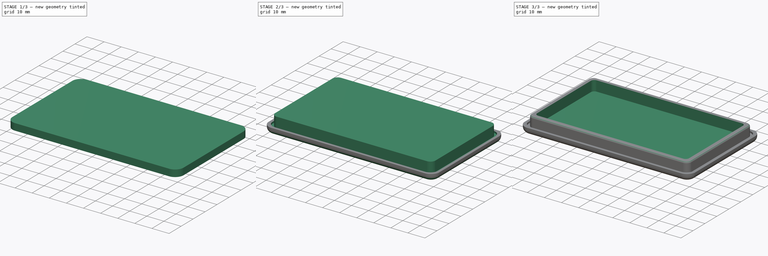
[diagram: build sequence overview — one tinted view per stage of 3, left to right]
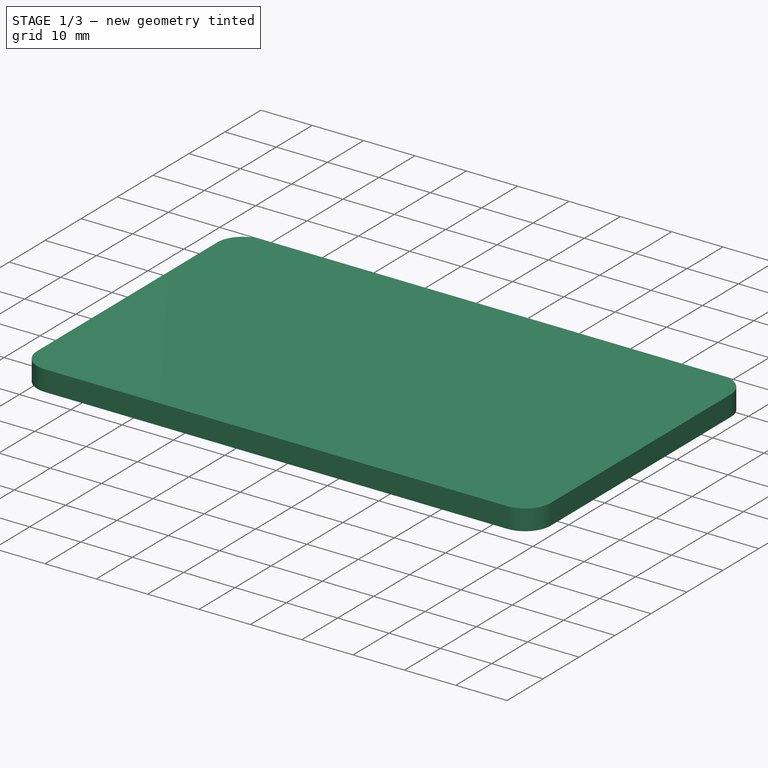
[diagram: stage 1 of 3 — iso view after this stage's code; geometry added in this stage tinted green]
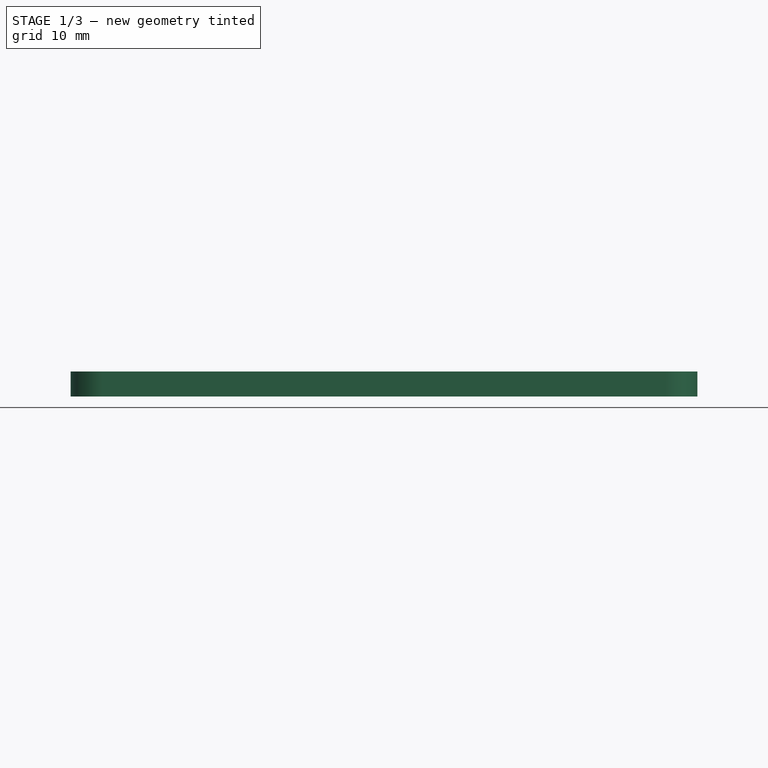
[diagram: stage 1 of 3 — front view after this stage's code; geometry added in this stage tinted green]
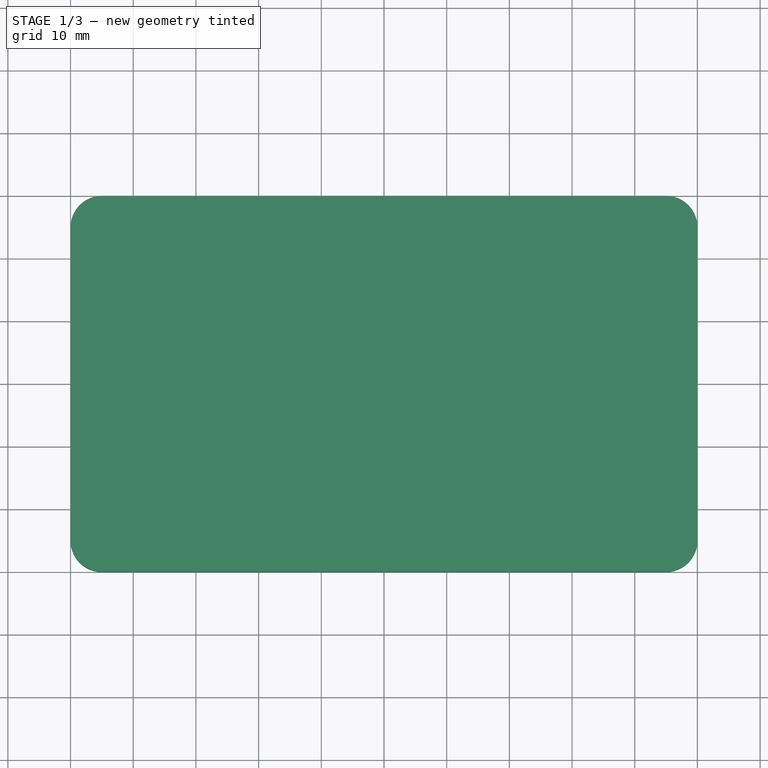
[diagram: stage 1 of 3 — top view after this stage's code; geometry added in this stage tinted green]
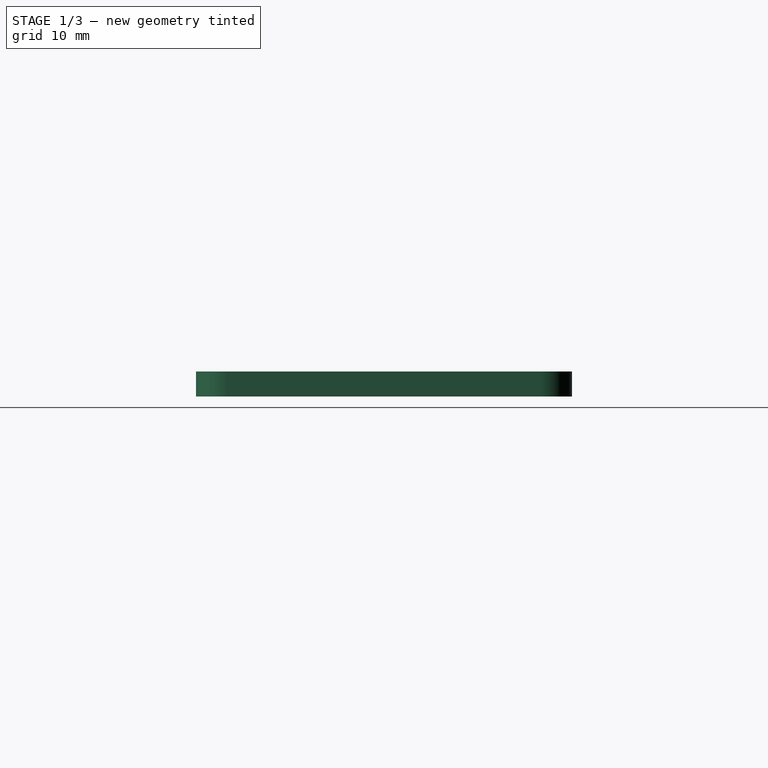
[diagram: stage 1 of 3 — right view after this stage's code; geometry added in this stage tinted green]
FCSTD DOCUMENT  (FreeCAD 0.19R24291 (Git))
Label: funnybox-closing-v3.2
License: All rights reserved
LicenseURL: http://en.wikipedia.org/wiki/All_rights_reserved
objects: Sketcher::SketchObject×4, PartDesign::Fillet×3, PartDesign::Pad×2, PartDesign::Pocket×2, PartDesign::Body×1
note: 19 computed .brp shape members not serialized (recipe doc carries the construction recipe); baked Part::Feature solids carry a one-line shape summary decoded from their .brp

FEATURE [Sketcher::SketchObject] Sketch
  FullyConstrained = true
  MapMode = 5
  Support = -> [XY_Plane]
  sketch-geometry (4):
    g0: LineSegment StartX=0 StartY=0 StartZ=0 EndX=100 EndY=0 EndZ=0
    g1: LineSegment StartX=100 StartY=0 StartZ=0 EndX=100 EndY=60 EndZ=0
    g2: LineSegment StartX=100 StartY=60 StartZ=0 EndX=0 EndY=60 EndZ=0
    g3: LineSegment StartX=0 StartY=60 StartZ=0 EndX=0 EndY=0 EndZ=0
  constraints (12):
    c: Coincident(g0,g1)
    c: Coincident(g1,g2)
    c: Coincident(g2,g3)
    c: Coincident(g3,g0)
    c: Horizontal(g0)
    c: Horizontal(g2)
    c: Vertical(g1)
    c: Vertical(g3)
    c: DistanceX(g0) = 0
    c: DistanceY(g0) = 0
    c: DistanceX(g2,g2) = 100
    c: DistanceY(g3,g3) = 60
FEATURE [PartDesign::Pad] Pad  label="Main"
  Direction = (1,1,1)
  Length = 4
  Length2 = 100
  Profile = -> Sketch
  Type = 0
FEATURE [Sketcher::SketchObject] Sketch001
  FullyConstrained = true
  MapMode = 5
  Placement = pos=(0,0,4) rot=(0,0,1;0rad)
  Support = -> [Pad]
  sketch-geometry (12):
    g0: LineSegment StartX=6.05 StartY=3.05 StartZ=0 EndX=93.95 EndY=3.05 EndZ=0
    g1: LineSegment StartX=96.95 StartY=6.05 StartZ=0 EndX=96.95 EndY=53.95 EndZ=0
    g2: LineSegment StartX=93.95 StartY=56.95 StartZ=0 EndX=6.05 EndY=56.95 EndZ=0
    g3: LineSegment StartX=3.05 StartY=53.95 StartZ=0 EndX=3.05 EndY=6.05 EndZ=0
    g4: ArcOfCircle CenterX=6.05 CenterY=53.95 CenterZ=0 NormalX=0 NormalY=0 NormalZ=1 AngleXU=0 Radius=3 StartAngle=1.5708 EndAngle=3.14159
    g5: GeomPoint X=3.05 Y=56.95 Z=0
    g6: ArcOfCircle CenterX=6.05 CenterY=6.05 CenterZ=0 NormalX=0 NormalY=0 NormalZ=1 AngleXU=0 Radius=3 StartAngle=3.14159 EndAngle=4.71239
    g7: GeomPoint X=3.05 Y=3.05 Z=0
    g8: ArcOfCircle CenterX=93.95 CenterY=6.05 CenterZ=0 NormalX=0 NormalY=0 NormalZ=1 AngleXU=0 Radius=3 StartAngle=4.71239 EndAngle=6.28319
    g9: GeomPoint X=96.95 Y=3.05 Z=0
    g10: ArcOfCircle CenterX=93.95 CenterY=53.95 CenterZ=0 NormalX=0 NormalY=0 NormalZ=1 AngleXU=0 Radius=3 StartAngle=7e-16 EndAngle=1.5708
    g11: GeomPoint X=96.95 Y=56.95 Z=0
  constraints (28):
    c: Horizontal(g0)
    c: Horizontal(g2)
    c: Vertical(g1)
    c: Vertical(g3)
    c: DistanceX(g7) = 3.05
    c: DistanceY(g7) = 3.05
    c: DistanceX(g7,g9) = 93.9
    c: DistanceY(g7,g5) = 53.9
    c: PointOnObject(g5,g2)
    c: PointOnObject(g5,g3)
    c: Tangent(g2,g4) = -1.5708
    c: Tangent(g3,g4) = -1.5708
    c: PointOnObject(g7,g0)
    c: PointOnObject(g7,g3)
    c: Tangent(g0,g6) = -1.5708
    c: Tangent(g3,g6) = -1.5708
    c: PointOnObject(g9,g0)
    c: PointOnObject(g9,g1)
    c: Tangent(g0,g8) = -1.5708
    c: Tangent(g1,g8) = -1.5708
    c: PointOnObject(g11,g1)
    c: PointOnObject(g11,g2)
    c: Tangent(g1,g10) = -1.5708
    c: Tangent(g2,g10) = -1.5708
    c: Radius(g4) = 3
    c: Radius(g6) = 3
    c: Radius(g10) = 3
    c: Radius(g8) = 3
FEATURE [Sketcher::SketchObject] Sketch008
  FullyConstrained = true
  MapMode = 5
  Placement = pos=(0,0,4) rot=(0,0,1;0rad)
  Support = -> [Pad]
  sketch-geometry (24):
    g0: LineSegment StartX=6.05 StartY=1.55 StartZ=0 EndX=93.95 EndY=1.55 EndZ=0
    g1: LineSegment StartX=98.45 StartY=6.05 StartZ=0 EndX=98.45 EndY=53.95 EndZ=0
    g2: LineSegment StartX=93.95 StartY=58.45 StartZ=0 EndX=6.05 EndY=58.45 EndZ=0
    g3: LineSegment StartX=1.55 StartY=53.95 StartZ=0 EndX=1.55 EndY=6.05 EndZ=0
    g4: LineSegment StartX=6.05 StartY=3.05 StartZ=0 EndX=93.95 EndY=3.05 EndZ=0
    g5: LineSegment StartX=96.95 StartY=6.05 StartZ=0 EndX=96.95 EndY=53.95 EndZ=0
    g6: LineSegment StartX=93.95 StartY=56.95 StartZ=0 EndX=6.05 EndY=56.95 EndZ=0
    g7: LineSegment StartX=3.05 StartY=53.95 StartZ=0 EndX=3.05 EndY=6.05 EndZ=0
    g8: ArcOfCircle CenterX=6.05 CenterY=53.95 CenterZ=0 NormalX=0 NormalY=0 NormalZ=1 AngleXU=0 Radius=3 StartAngle=1.5708 EndAngle=3.14159
    g9: GeomPoint X=3.05 Y=56.95 Z=0
    g10: ArcOfCircle CenterX=6.05 CenterY=53.95 CenterZ=0 NormalX=0 NormalY=0 NormalZ=1 AngleXU=0 Radius=4.5 StartAngle=1.5708 EndAngle=3.14159
    g11: GeomPoint X=1.55 Y=58.45 Z=0
    g12: ArcOfCircle CenterX=93.95 CenterY=53.95 CenterZ=0 NormalX=0 NormalY=0 NormalZ=1 AngleXU=0 Radius=3 StartAngle=8e-16 EndAngle=1.5708
    g13: GeomPoint X=96.95 Y=56.95 Z=0
    g14: ArcOfCircle CenterX=93.95 CenterY=53.95 CenterZ=0 NormalX=0 NormalY=0 NormalZ=1 AngleXU=0 Radius=4.5 StartAngle=2e-16 EndAngle=1.5708
    g15: GeomPoint X=98.45 Y=58.45 Z=0
    g16: ArcOfCircle CenterX=6.05 CenterY=6.05 CenterZ=0 NormalX=0 NormalY=0 NormalZ=1 AngleXU=0 Radius=3 StartAngle=3.14159 EndAngle=4.71239
    g17: GeomPoint X=3.05 Y=3.05 Z=0
    g18: ArcOfCircle CenterX=6.05 CenterY=6.05 CenterZ=0 NormalX=0 NormalY=0 NormalZ=1 AngleXU=0 Radius=4.5 StartAngle=3.14159 EndAngle=4.71239
    g19: GeomPoint X=1.55 Y=1.55 Z=0
    g20: ArcOfCircle CenterX=93.95 CenterY=6.05 CenterZ=0 NormalX=0 NormalY=0 NormalZ=1 AngleXU=0 Radius=3 StartAngle=4.71239 EndAngle=6.28319
    g21: GeomPoint X=96.95 Y=3.05 Z=0
    g22: ArcOfCircle CenterX=93.95 CenterY=6.05 CenterZ=0 NormalX=0 NormalY=0 NormalZ=1 AngleXU=0 Radius=4.5 StartAngle=4.71239 EndAngle=6.28319
    g23: GeomPoint X=98.45 Y=1.55 Z=0
  constraints (56):
    c: Horizontal(g0)
    c: Horizontal(g2)
    c: Vertical(g1)
    c: Vertical(g3)
    c: DistanceX(g19) = 1.55
    c: DistanceY(g19) = 1.55
    c: DistanceX(g19,g23) = 96.9
    c: DistanceY(g19,g11) = 56.9
    c: Horizontal(g4)
    c: Horizontal(g6)
    c: Vertical(g5)
    c: Vertical(g7)
    c: DistanceX(g17) = 3.05
    c: DistanceY(g17) = 3.05
    c: DistanceX(g17,g21) = 93.9
    c: DistanceY(g17,g9) = 53.9
    c: PointOnObject(g9,g6)
    c: PointOnObject(g9,g7)
    c: Tangent(g6,g8) = -1.5708
    c: Tangent(g7,g8) = -1.5708
    c: PointOnObject(g11,g2)
    c: PointOnObject(g11,g3)
    c: Tangent(g2,g10) = -1.5708
    c: Tangent(g3,g10) = -1.5708
    c: PointOnObject(g13,g5)
    c: PointOnObject(g13,g6)
    c: Tangent(g5,g12) = -1.5708
    c: Tangent(g6,g12) = -1.5708
    c: PointOnObject(g15,g1)
    c: PointOnObject(g15,g2)
    c: Tangent(g1,g14) = -1.5708
    c: Tangent(g2,g14) = -1.5708
    c: PointOnObject(g17,g4)
    c: PointOnObject(g17,g7)
    c: Tangent(g4,g16) = -1.5708
    c: Tangent(g7,g16) = -1.5708
    c: PointOnObject(g19,g0)
    c: PointOnObject(g19,g3)
    c: Tangent(g0,g18) = -1.5708
    c: Tangent(g3,g18) = -1.5708
    c: PointOnObject(g21,g4)
    c: PointOnObject(g21,g5)
    c: Tangent(g4,g20) = -1.5708
    c: Tangent(g5,g20) = -1.5708
    c: PointOnObject(g23,g0)
    c: PointOnObject(g23,g1)
    c: Tangent(g0,g22) = -1.5708
    c: Tangent(g1,g22) = -1.5708
    c: Radius(g10) = 4.5
    c: Radius(g8) = 3
    c: Radius(g18) = 4.5
    c: Radius(g16) = 3
    c: Radius(g12) = 3
    c: Radius(g14) = 4.5
    c: Radius(g20) = 3
    c: Radius(g22) = 4.5
FEATURE [PartDesign::Fillet] Fillet
  Base = -> Pad [Edge2,Edge1,Edge5,Edge8]
  BaseFeature = -> Pad
  Radius = 5
  SupportTransform = false
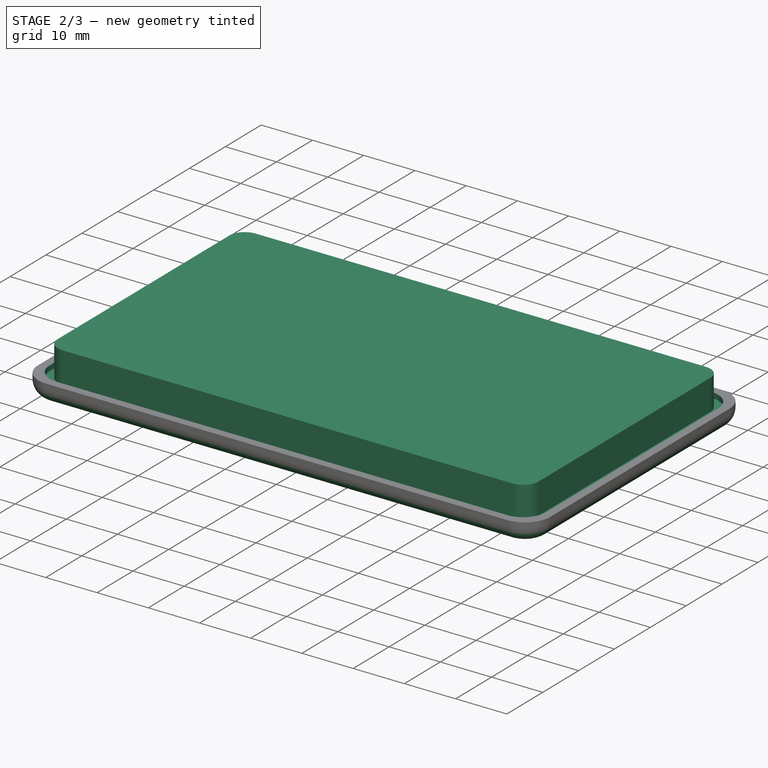
[diagram: stage 2 of 3 — iso view after this stage's code; geometry added in this stage tinted green]
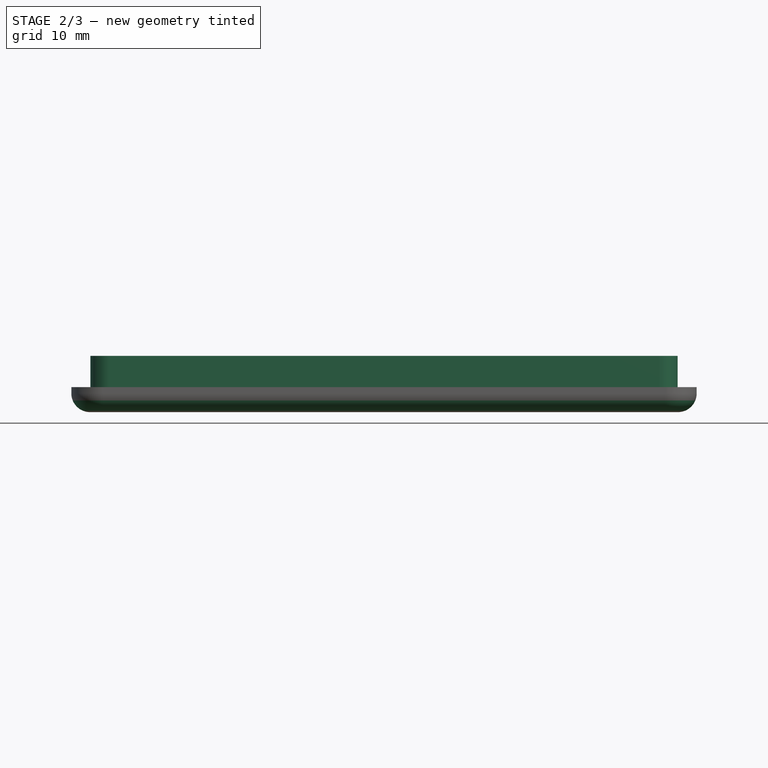
[diagram: stage 2 of 3 — front view after this stage's code; geometry added in this stage tinted green]
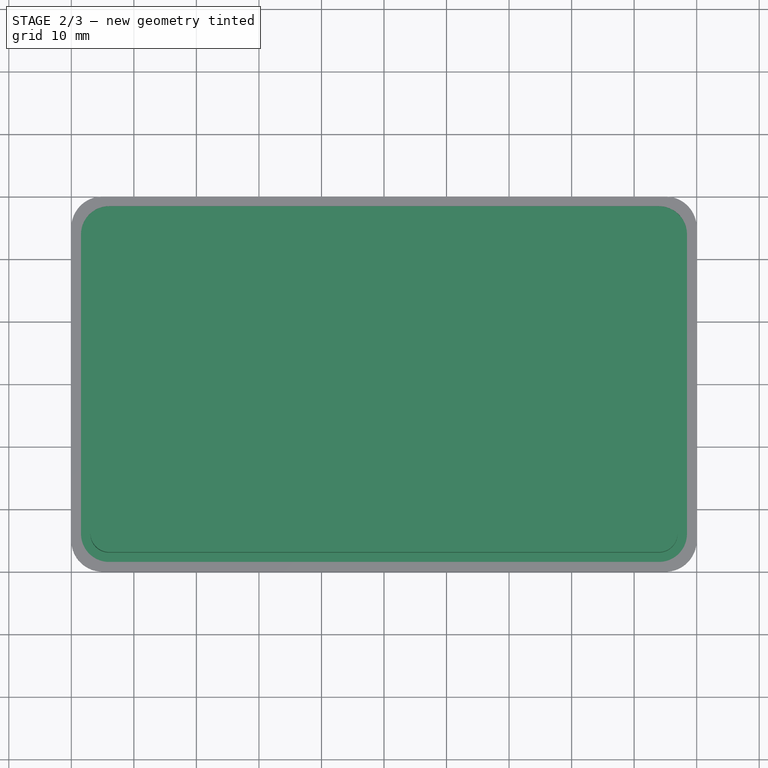
[diagram: stage 2 of 3 — top view after this stage's code; geometry added in this stage tinted green]
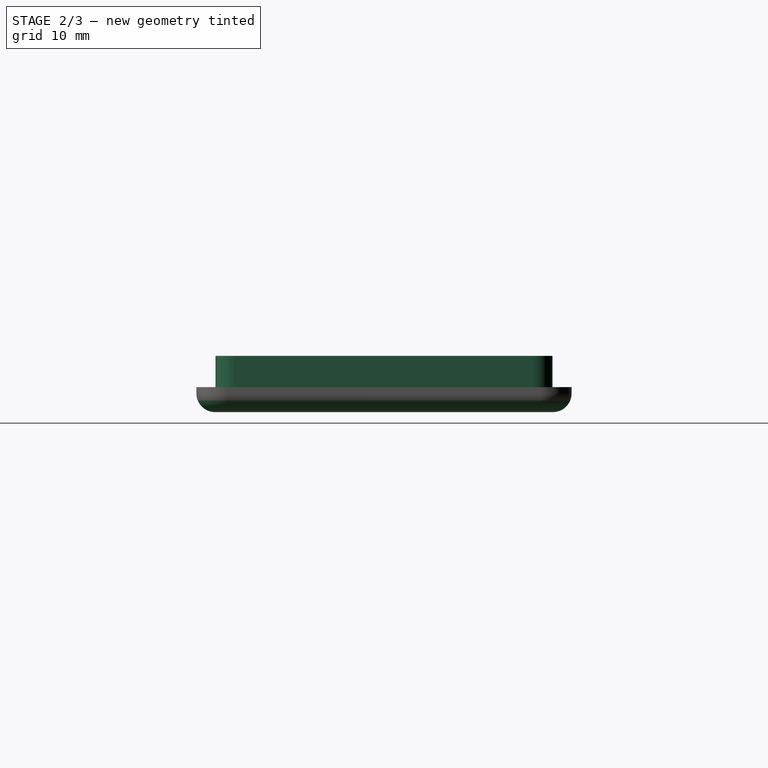
[diagram: stage 2 of 3 — right view after this stage's code; geometry added in this stage tinted green]
FEATURE [PartDesign::Fillet] Fillet001
  Base = -> Fillet [Edge11]
  BaseFeature = -> Fillet
  Radius = 3
  SupportTransform = false
FEATURE [PartDesign::Pocket] Pocket001  label="rubber hole"
  BaseFeature = -> Fillet001
  Length = 1
  Length2 = 100
  Profile = -> Sketch008
  Type = 0
FEATURE [PartDesign::Pad] Pad001  label="grabbing wall"
  BaseFeature = -> Pocket001
  Direction = (1,1,1)
  Length = 5
  Length2 = 100
  Profile = -> Sketch001
  Type = 0
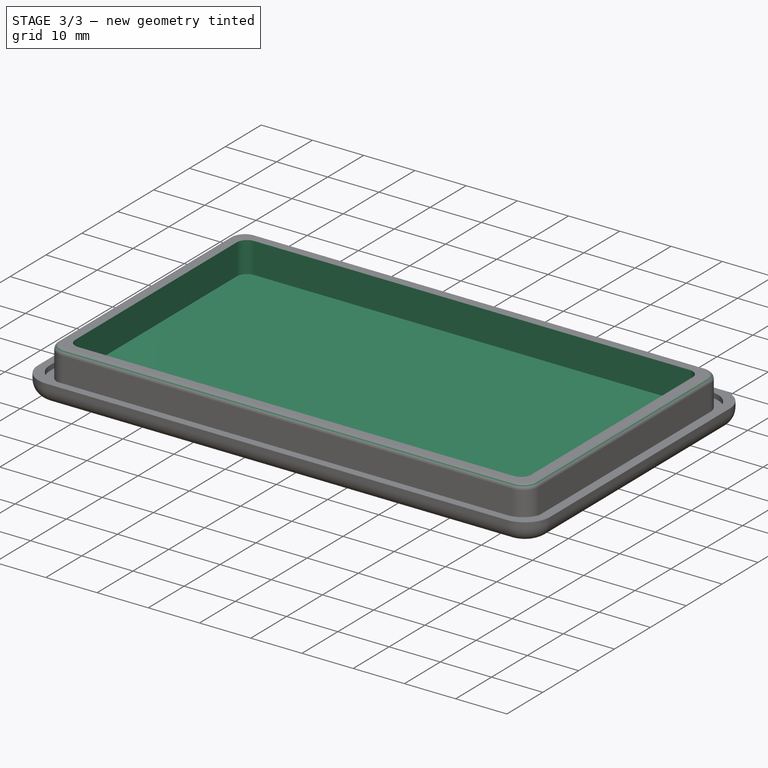
[diagram: stage 3 of 3 — iso view after this stage's code; geometry added in this stage tinted green]
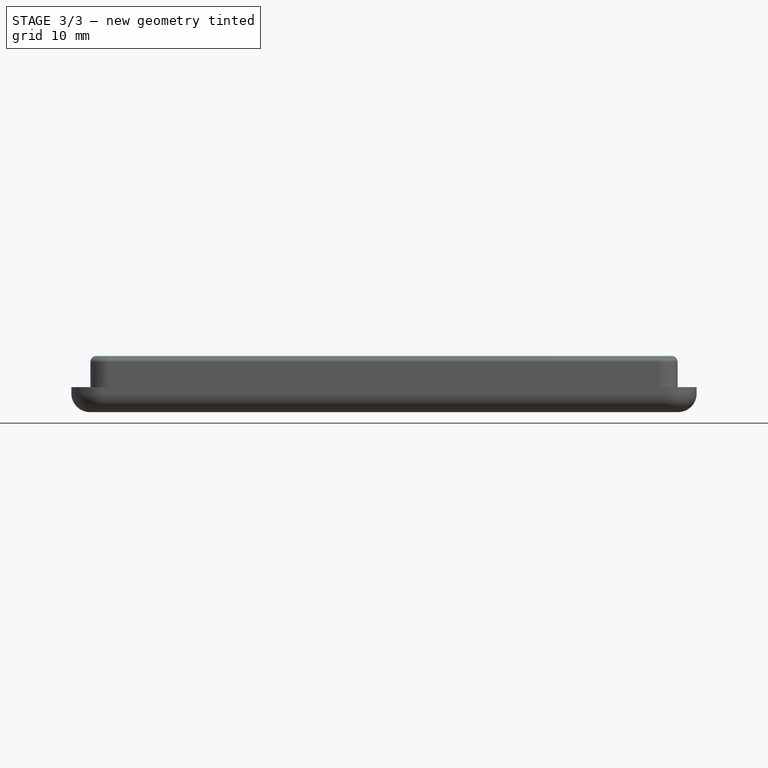
[diagram: stage 3 of 3 — front view after this stage's code; geometry added in this stage tinted green]
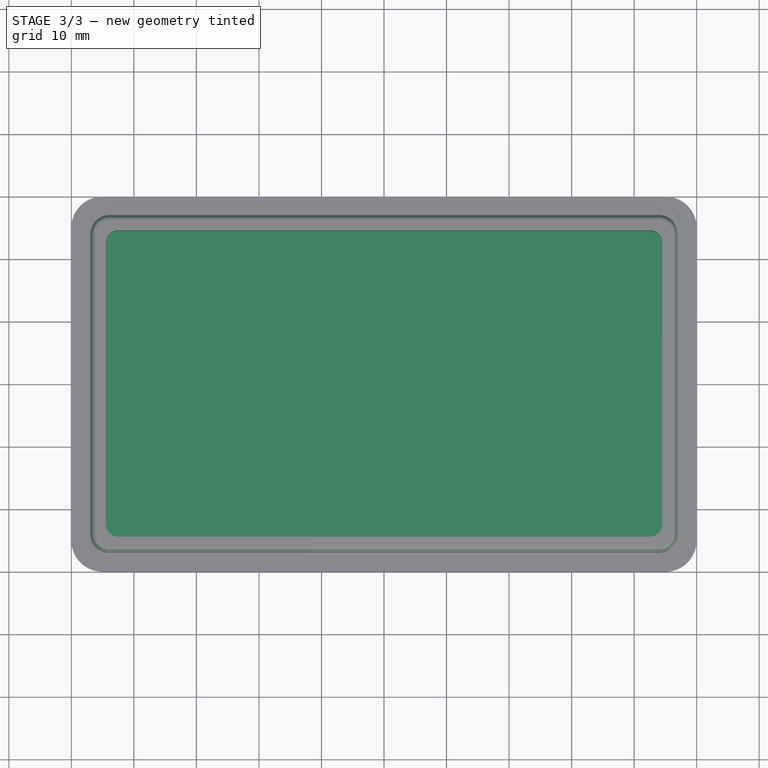
[diagram: stage 3 of 3 — top view after this stage's code; geometry added in this stage tinted green]
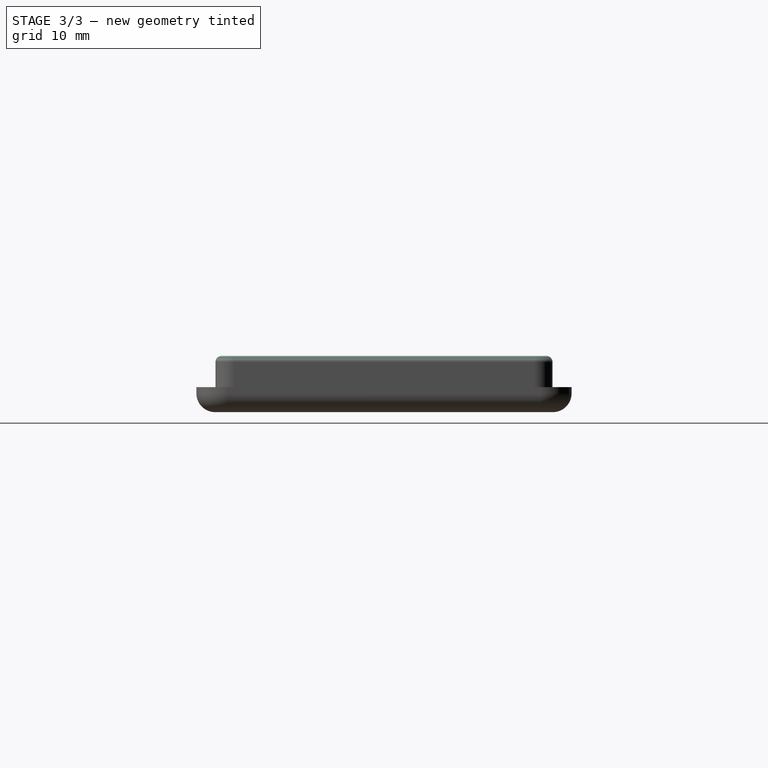
[diagram: stage 3 of 3 — right view after this stage's code; geometry added in this stage tinted green]
FEATURE [Sketcher::SketchObject] Sketch009
  FullyConstrained = true
  MapMode = 5
  Placement = pos=(0,0,9) rot=(0,0,1;0rad)
  Support = -> [Pad001]
  sketch-geometry (12):
    g0: LineSegment StartX=7.5 StartY=5.5 StartZ=0 EndX=92.5 EndY=5.5 EndZ=0
    g1: LineSegment StartX=94.5 StartY=7.5 StartZ=0 EndX=94.5 EndY=52.5 EndZ=0
    g2: LineSegment StartX=92.5 StartY=54.5 StartZ=0 EndX=7.5 EndY=54.5 EndZ=0
    g3: LineSegment StartX=5.5 StartY=52.5 StartZ=0 EndX=5.5 EndY=7.5 EndZ=0
    g4: ArcOfCircle CenterX=7.5 CenterY=52.5 CenterZ=0 NormalX=0 NormalY=0 NormalZ=1 AngleXU=0 Radius=2 StartAngle=1.5708 EndAngle=3.14159
    g5: GeomPoint X=5.5 Y=54.5 Z=0
    g6: ArcOfCircle CenterX=7.5 CenterY=7.5 CenterZ=0 NormalX=0 NormalY=0 NormalZ=1 AngleXU=0 Radius=2 StartAngle=3.14159 EndAngle=4.71239
    g7: GeomPoint X=5.5 Y=5.5 Z=0
    g8: ArcOfCircle CenterX=92.5 CenterY=7.5 CenterZ=0 NormalX=0 NormalY=0 NormalZ=1 AngleXU=0 Radius=2 StartAngle=4.71239 EndAngle=6.28319
    g9: GeomPoint X=94.5 Y=5.5 Z=0
    g10: ArcOfCircle CenterX=92.5 CenterY=52.5 CenterZ=0 NormalX=0 NormalY=0 NormalZ=1 AngleXU=0 Radius=2 StartAngle=-9e-16 EndAngle=1.5708
    g11: GeomPoint X=94.5 Y=54.5 Z=0
  constraints (28):
    c: Horizontal(g0)
    c: Horizontal(g2)
    c: Vertical(g1)
    c: Vertical(g3)
    c: DistanceX(g7) = 5.5
    c: DistanceY(g7) = 5.5
    c: DistanceX(g7,g9) = 89
    c: DistanceY(g7,g5) = 49
    c: PointOnObject(g5,g2)
    c: PointOnObject(g5,g3)
    c: Tangent(g2,g4) = -1.5708
    c: Tangent(g3,g4) = -1.5708
    c: PointOnObject(g7,g0)
    c: PointOnObject(g7,g3)
    c: Tangent(g0,g6) = -1.5708
    c: Tangent(g3,g6) = -1.5708
    c: PointOnObject(g9,g0)
    c: PointOnObject(g9,g1)
    c: Tangent(g0,g8) = -1.5708
    c: Tangent(g1,g8) = -1.5708
    c: PointOnObject(g11,g1)
    c: PointOnObject(g11,g2)
    c: Tangent(g1,g10) = -1.5708
    c: Tangent(g2,g10) = -1.5708
    c: Radius(g4) = 2
    c: Radius(g6) = 2
    c: Radius(g10) = 2
    c: Radius(g8) = 2
FEATURE [PartDesign::Pocket] Pocket  label="grabbing hole"
  BaseFeature = -> Pad001
  Length = 6
  Length2 = 100
  Profile = -> Sketch009
  Type = 0
FEATURE [PartDesign::Fillet] Fillet002
  Base = -> Pocket [Edge104]
  BaseFeature = -> Pocket
  Radius = 1
  SupportTransform = false
FEATURE [PartDesign::Body] Body
  Group = -> [Sketch,Pad,Sketch001,Sketch008,Fillet,Fillet001,Pocket001,Pad001,Sketch009,Pocket,Fillet002]
  Origin = -> Origin
  Tip = -> Fillet002
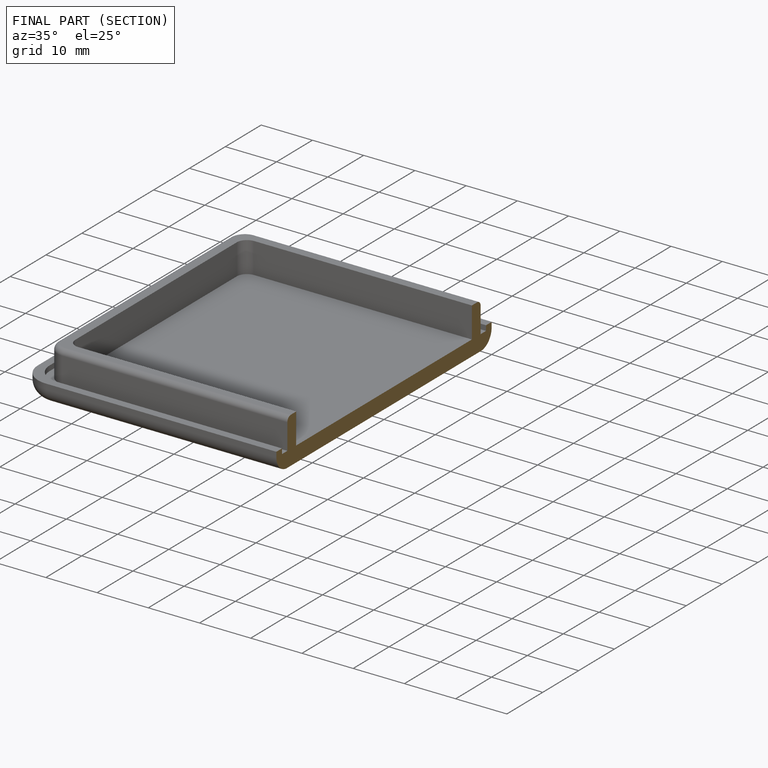
[diagram: finished part — half-section view (interior)]
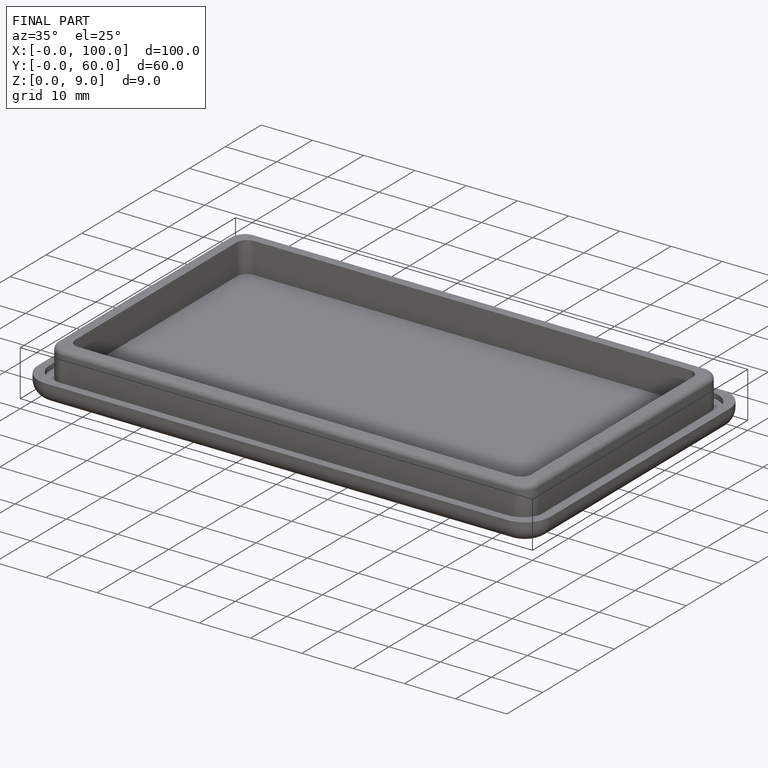
[diagram: finished part — iso view with bounding-box wireframe]
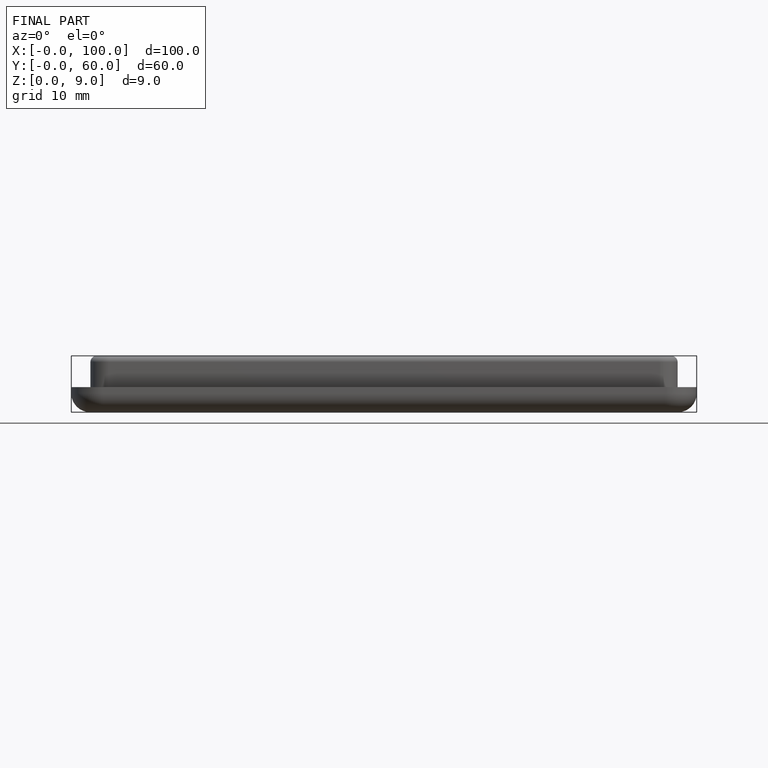
[diagram: finished part — front view with bounding-box wireframe]
